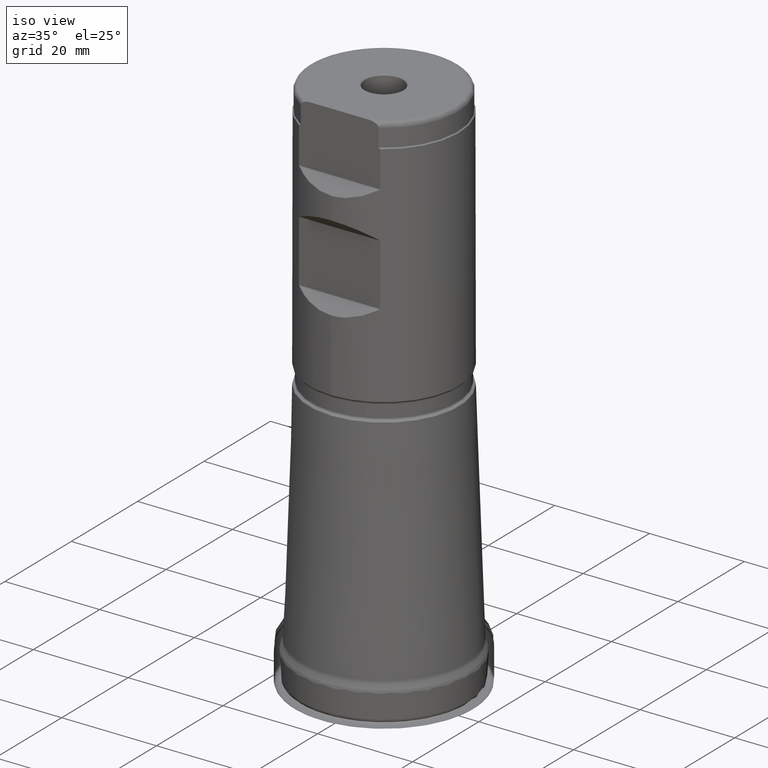
[diagram: clean part render]
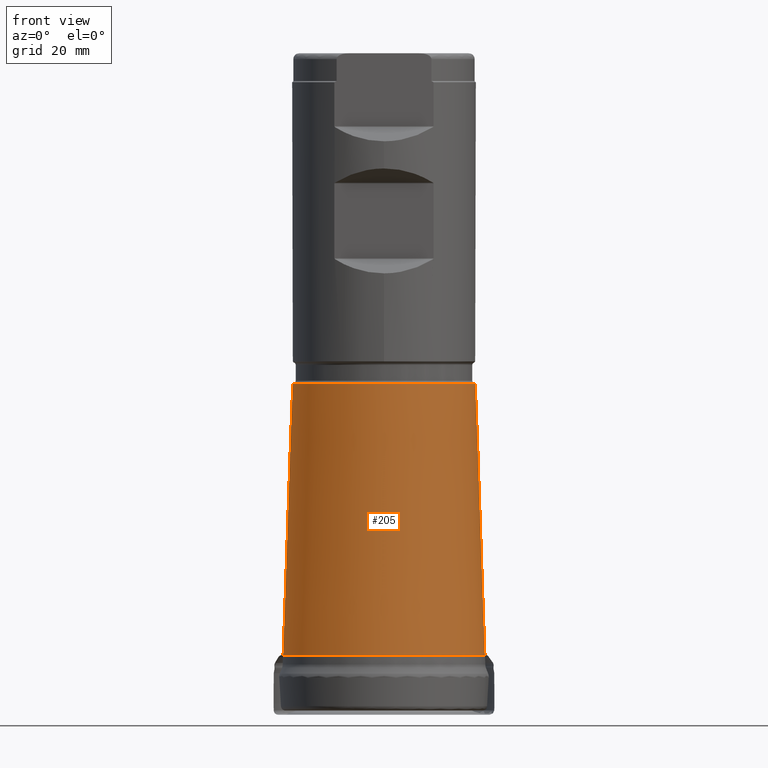
[diagram: tour spotlight — one face highlighted and labeled with its STEP entity id]
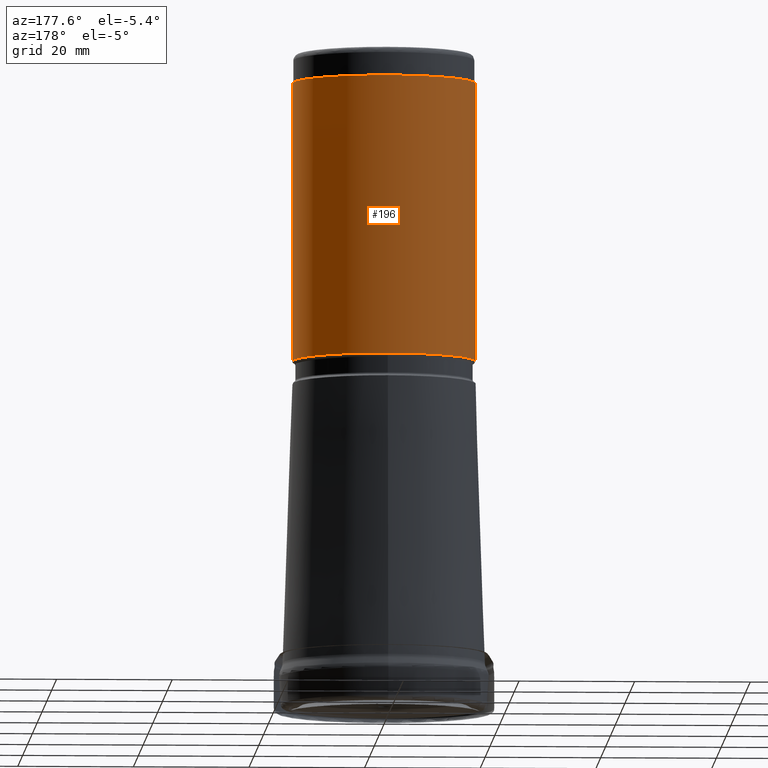
[diagram: tour spotlight — one face highlighted and labeled with its STEP entity id]
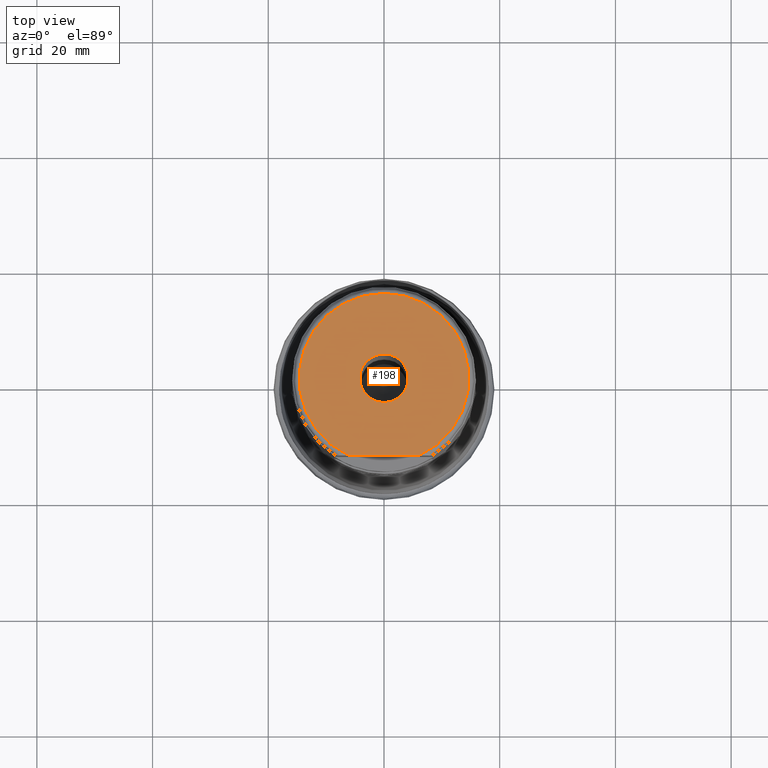
[diagram: tour spotlight — one face highlighted and labeled with its STEP entity id]
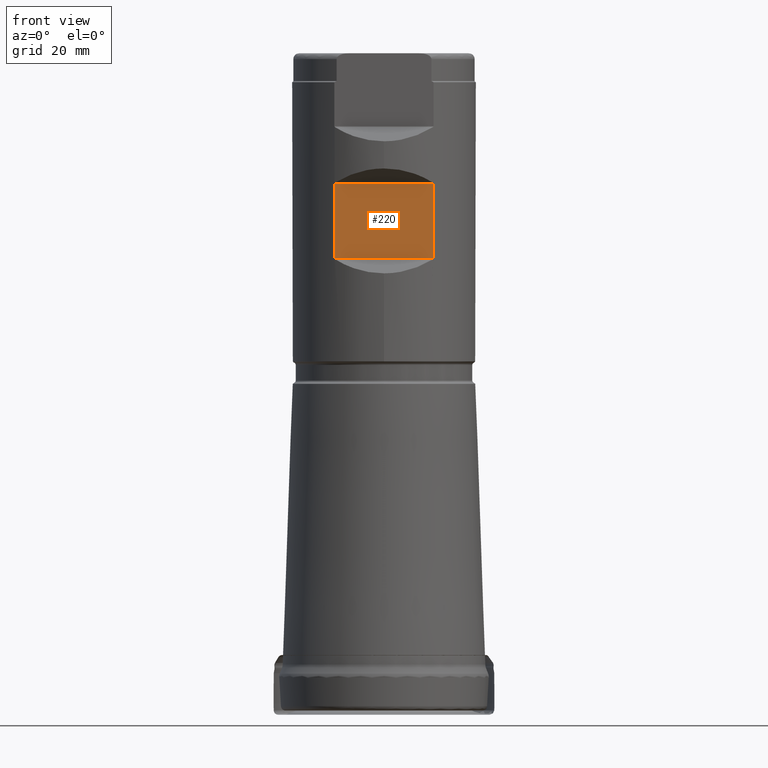
[diagram: tour spotlight — one face highlighted and labeled with its STEP entity id]
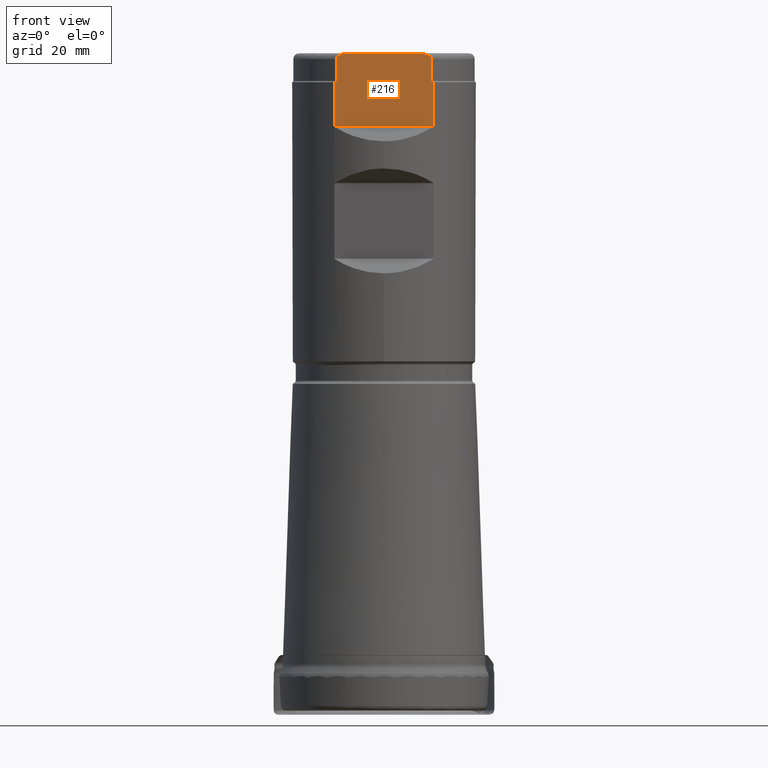
[diagram: tour spotlight — one face highlighted and labeled with its STEP entity id]
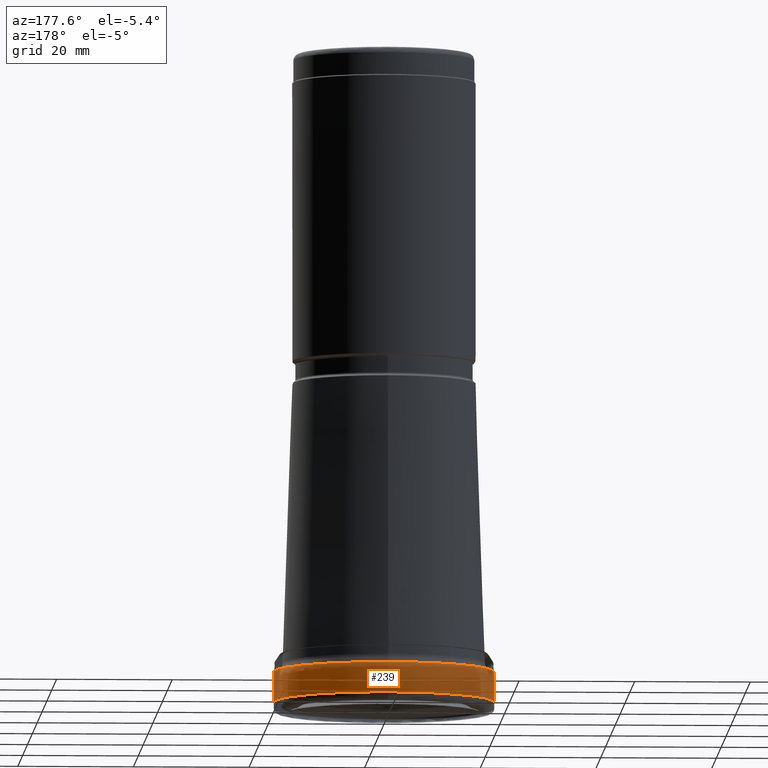
[diagram: tour spotlight — one face highlighted and labeled with its STEP entity id]
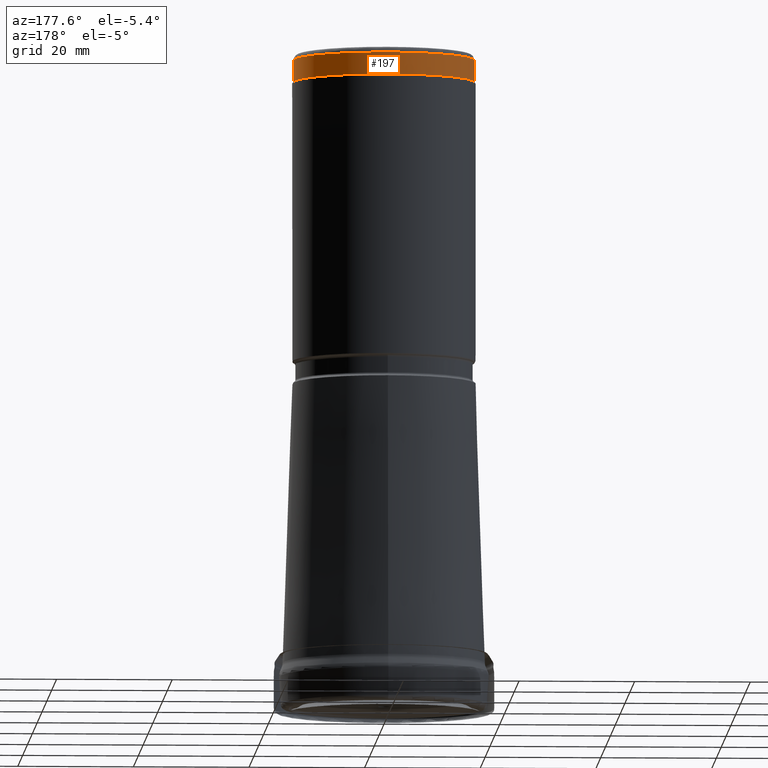
[diagram: tour spotlight — one face highlighted and labeled with its STEP entity id]
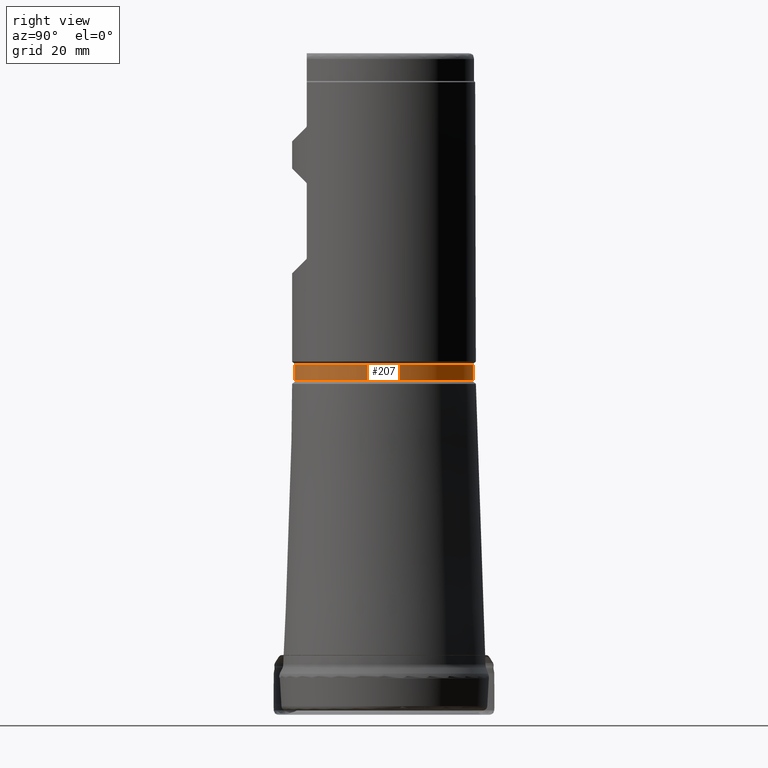
[diagram: tour spotlight — one face highlighted and labeled with its STEP entity id]
A machine part: a face-by-face anatomy tour. The part has 58 B-rep faces; the first image is the clean iso view, then the 8 largest visible faces are spotlighted one at a time (largest first), each with its STEP entity span.

Face 1 — front view, entity #205. In plain terms, the highlighted conical surface has half-angle 1.958 deg.
Definition (entity closure, byte-faithful):
#169=CONICAL_SURFACE('',#917,15.8818364508803,1.95773665841158);
#205=ADVANCED_FACE('',(#304,#305),#169,.T.);
#304=FACE_BOUND('',#402,.T.);
#305=FACE_BOUND('',#403,.T.);
#402=EDGE_LOOP('',(#528));
#403=EDGE_LOOP('',(#529));
#528=ORIENTED_EDGE('',*,*,#741,.T.);
#529=ORIENTED_EDGE('',*,*,#742,.F.);
#670=VERTEX_POINT('',#1583);
#671=VERTEX_POINT('',#1585);
#741=EDGE_CURVE('',#670,#670,#796,.T.);
#742=EDGE_CURVE('',#671,#671,#797,.T.);
#796=CIRCLE('',#915,17.5391526128432);
#797=CIRCLE('',#916,15.8818364508803);
#915=AXIS2_PLACEMENT_3D('',#1582,#1037,#1038);
#916=AXIS2_PLACEMENT_3D('',#1584,#1039,#1040);
#917=AXIS2_PLACEMENT_3D('',#1586,#1041,#1042);
#1037=DIRECTION('',(0.,1.17145536458252E-15,1.));
#1038=DIRECTION('',(0.,1.,-1.18686929586772E-15));
#1039=DIRECTION('',(0.,1.17145536458252E-15,1.));
#1040=DIRECTION('',(0.,-1.,1.31072258400998E-15));
#1041=DIRECTION('',(0.,-1.17145536458252E-15,-1.));
#1042=DIRECTION('',(0.,1.,-1.52460239751261E-15));
#1582=CARTESIAN_POINT('',(0.,1.01510186144051E-14,8.66530550058361));
#1583=CARTESIAN_POINT('',(0.,17.5391526128432,8.66530550058359));
#1584=CARTESIAN_POINT('',(0.,6.69486740858913E-14,57.15));
#1585=CARTESIAN_POINT('',(0.,-15.8818364508803,57.15));
#1586=CARTESIAN_POINT('',(0.,6.69486740858913E-14,57.15));

Face 2 — auxiliary view, entity #196. In plain terms, the highlighted cylindrical surface (bore or boss wall) has radius 15.875 mm, axis along (0, 0, 1).
Definition (entity closure, byte-faithful):
#196=ADVANCED_FACE('',(#291,#292,#293),#254,.T.);
#254=CYLINDRICAL_SURFACE('',#894,15.875);
#262=LINE('',#1450,#275);
#263=LINE('',#1482,#276);
#264=LINE('',#1498,#277);
#265=LINE('',#1502,#278);
#275=VECTOR('',#982,1.);
#276=VECTOR('',#985,1.);
#277=VECTOR('',#986,1.);
#278=VECTOR('',#989,1.);
#288=ELLIPSE('',#890,22.4506403026729,15.875);
#289=ELLIPSE('',#891,22.4506403026729,15.875);
#290=ELLIPSE('',#893,22.4506403026729,15.875);
#291=FACE_BOUND('',#386,.T.);
#292=FACE_BOUND('',#387,.T.);
#293=FACE_BOUND('',#388,.T.);
#386=EDGE_LOOP('',(#490));
#387=EDGE_LOOP('',(#491,#492,#493,#494,#495,#496,#497,#498));
#388=EDGE_LOOP('',(#499,#500,#501,#502,#503,#504));
#490=ORIENTED_EDGE('',*,*,#707,.T.);
#491=ORIENTED_EDGE('',*,*,#708,.F.);
#492=ORIENTED_EDGE('',*,*,#709,.T.);
#493=ORIENTED_EDGE('',*,*,#710,.F.);
#494=ORIENTED_EDGE('',*,*,#711,.T.);
#495=ORIENTED_EDGE('',*,*,#712,.F.);
#496=ORIENTED_EDGE('',*,*,#713,.T.);
#497=ORIENTED_EDGE('',*,*,#714,.F.);
#498=ORIENTED_EDGE('',*,*,#715,.T.);
#499=ORIENTED_EDGE('',*,*,#716,.F.);
#500=ORIENTED_EDGE('',*,*,#717,.T.);
#501=ORIENTED_EDGE('',*,*,#718,.F.);
#502=ORIENTED_EDGE('',*,*,#719,.T.);
#503=ORIENTED_EDGE('',*,*,#720,.F.);
#504=ORIENTED_EDGE('',*,*,#721,.T.);
#640=VERTEX_POINT('',#1418);
#641=VERTEX_POINT('',#1432);
#642=VERTEX_POINT('',#1433);
#643=VERTEX_POINT('',#1435);
#644=VERTEX_POINT('',#1449);
#645=VERTEX_POINT('',#1451);
#646=VERTEX_POINT('',#1465);
#647=VERTEX_POINT('',#1467);
#648=VERTEX_POINT('',#1481);
#649=VERTEX_POINT('',#1496);
#650=VERTEX_POINT('',#1497);
#651=VERTEX_POINT('',#1499);
#652=VERTEX_POINT('',#1501);
#653=VERTEX_POINT('',#1503);
#654=VERTEX_POINT('',#1517);
#707=EDGE_CURVE('',#640,#640,#782,.T.);
#708=EDGE_CURVE('',#641,#642,#855,.T.);
#709=EDGE_CURVE('',#641,#643,#288,.T.);
#710=EDGE_CURVE('',#644,#643,#856,.T.);
#711=EDGE_CURVE('',#644,#645,#262,.T.);
#712=EDGE_CURVE('',#646,#645,#857,.T.);
#713=EDGE_CURVE('',#646,#647,#289,.T.);
#714=EDGE_CURVE('',#648,#647,#858,.T.);
#715=EDGE_CURVE('',#648,#642,#263,.T.);
#716=EDGE_CURVE('',#649,#650,#859,.T.);
#717=EDGE_CURVE('',#649,#651,#264,.T.);
#718=EDGE_CURVE('',#652,#651,#783,.T.);
#719=EDGE_CURVE('',#652,#653,#265,.T.);
#720=EDGE_CURVE('',#654,#653,#860,.T.);
#721=EDGE_CURVE('',#654,#650,#290,.T.);
#782=CIRCLE('',#889,15.875);
#783=CIRCLE('',#892,15.875);
#855=B_SPLINE_CURVE_WITH_KNOTS('',3,(#1419,#1420,#1421,#1422,#1423,#1424,
#1425,#1426,#1427,#1428,#1429,#1430,#1431),.UNSPECIFIED.,.F.,.F.,(4,3,3,
3,4),(0.,0.447226272190569,0.702342778333381,0.915350888051915,1.),
 .UNSPECIFIED.);
#856=B_SPLINE_CURVE_WITH_KNOTS('',3,(#1436,#1437,#1438,#1439,#1440,#1441,
#1442,#1443,#1444,#1445,#1446,#1447,#1448),.UNSPECIFIED.,.F.,.F.,(4,3,3,
3,4),(0.,0.205640791358836,0.409516717561016,0.756966558360492,1.),
 .UNSPECIFIED.);
#857=B_SPLINE_CURVE_WITH_KNOTS('',3,(#1452,#1453,#1454,#1455,#1456,#1457,
#1458,#1459,#1460,#1461,#1462,#1463,#1464),.UNSPECIFIED.,.F.,.F.,(4,3,3,
3,4),(0.,0.447226272190579,0.702342778333387,0.915350888051914,1.),
 .UNSPECIFIED.);
#858=B_SPLINE_CURVE_WITH_KNOTS('',3,(#1468,#1469,#1470,#1471,#1472,#1473,
#1474,#1475,#1476,#1477,#1478,#1479,#1480),.UNSPECIFIED.,.F.,.F.,(4,3,3,
3,4),(0.,0.205640791358834,0.409516717561013,0.756966558360499,1.),
 .UNSPECIFIED.);
#859=B_SPLINE_CURVE_WITH_KNOTS('',3,(#1483,#1484,#1485,#1486,#1487,#1488,
#1489,#1490,#1491,#1492,#1493,#1494,#1495),.UNSPECIFIED.,.F.,.F.,(4,3,3,
3,4),(0.,0.205640791358836,0.409516717561016,0.756966558360505,1.),
 .UNSPECIFIED.);
#860=B_SPLINE_CURVE_WITH_KNOTS('',3,(#1504,#1505,#1506,#1507,#1508,#1509,
#1510,#1511,#1512,#1513,#1514,#1515,#1516),.UNSPECIFIED.,.F.,.F.,(4,3,3,
3,4),(0.,0.447226272190568,0.702342778333383,0.915350888051913,1.),
 .UNSPECIFIED.);
#889=AXIS2_PLACEMENT_3D('',#1417,#978,#979);
#890=AXIS2_PLACEMENT_3D('',#1434,#980,#981);
#891=AXIS2_PLACEMENT_3D('',#1466,#983,#984);
#892=AXIS2_PLACEMENT_3D('',#1500,#987,#988);
#893=AXIS2_PLACEMENT_3D('',#1518,#990,#991);
#894=AXIS2_PLACEMENT_3D('',#1519,#992,#993);
#978=DIRECTION('',(0.,1.17145536458252E-15,1.));
#979=DIRECTION('',(0.,-1.,1.31128703695885E-15));
#980=DIRECTION('',(4.32978028117746E-17,0.707106781186548,0.707106781186547));
#981=DIRECTION('',(-4.32978028117746E-17,-0.707106781186547,0.707106781186548));
#982=DIRECTION('',(0.,-1.17145536458252E-15,-1.));
#983=DIRECTION('',(-4.32978028117746E-17,0.707106781186546,-0.707106781186549));
#984=DIRECTION('',(-4.32978028117747E-17,0.707106781186549,0.707106781186546));
#985=DIRECTION('',(0.,1.17145536458252E-15,1.));
#986=DIRECTION('',(0.,1.17145536458252E-15,1.));
#987=DIRECTION('',(0.,1.17145536458252E-15,1.));
#988=DIRECTION('',(0.,-1.,8.74191357972565E-16));
#989=DIRECTION('',(0.,-1.17145536458252E-15,-1.));
#990=DIRECTION('',(-4.32978028117746E-17,0.707106781186547,-0.707106781186548));
#991=DIRECTION('',(-4.32978028117746E-17,0.707106781186548,0.707106781186547));
#992=DIRECTION('',(0.,1.17145536458252E-15,1.));
#993=DIRECTION('',(0.,-1.,1.17145536458252E-15));
#1417=CARTESIAN_POINT('',(0.,7.15075191289347E-14,61.04160797831));
#1418=CARTESIAN_POINT('',(0.,-15.8749999999999,61.04160797831));
#1419=CARTESIAN_POINT('',(-8.43243242797532,-13.4502679656439,91.9691929656441));
#1420=CARTESIAN_POINT('',(-8.46361143884219,-13.4307207787048,91.9496457787049));
#1421=CARTESIAN_POINT('',(-8.4933984424716,-13.4118846570127,91.9255206495938));
#1422=CARTESIAN_POINT('',(-8.5178872560294,-13.396313735262,91.8956181386713));
#1423=CARTESIAN_POINT('',(-8.53193173130368,-13.3873837221763,91.8784688768544));
#1424=CARTESIAN_POINT('',(-8.54441382984934,-13.3794147287313,91.8590630275321));
#1425=CARTESIAN_POINT('',(-8.55368735168281,-13.3734833790475,91.8378519341128));
#1426=CARTESIAN_POINT('',(-8.56142480473667,-13.368534499803,91.8201542522073));
#1427=CARTESIAN_POINT('',(-8.56702492155711,-13.3649436058532,91.8007778754662));
#1428=CARTESIAN_POINT('',(-8.56949269450963,-13.3633611026097,91.78105546916));
#1429=CARTESIAN_POINT('',(-8.57048531444897,-13.3627245674407,91.7731224647353));
#1430=CARTESIAN_POINT('',(-8.57099126355872,-13.3623999999999,91.7650810952869));
#1431=CARTESIAN_POINT('',(-8.57099126355872,-13.3623999999999,91.7570609312881));
#1432=CARTESIAN_POINT('',(-8.43243242797532,-13.4502679656439,91.9691929656441));
#1433=CARTESIAN_POINT('',(-8.57099126355872,-13.3623999999999,91.7570609312881));
#1434=CARTESIAN_POINT('',(0.,9.19814159125029E-14,78.518925));
#1435=CARTESIAN_POINT('',(8.43243242797532,-13.4502679656439,91.9691929656441));
#1436=CARTESIAN_POINT('',(8.57099126355872,-13.3623999999999,91.7570609312881));
#1437=CARTESIAN_POINT('',(8.57099126355872,-13.3623999999999,91.7762786100295));
#1438=CARTESIAN_POINT('',(8.56797949318684,-13.3643329132384,91.7957349967495));
#1439=CARTESIAN_POINT('',(8.56253452978559,-13.3678205937328,91.8138321687532));
#1440=CARTESIAN_POINT('',(8.55711630655783,-13.371291146255,91.8318404656841));
#1441=CARTESIAN_POINT('',(8.54924203747681,-13.3763301718208,91.8489420979583));
#1442=CARTESIAN_POINT('',(8.53988226968962,-13.3823030835442,91.8645119312464));
#1443=CARTESIAN_POINT('',(8.52402617126588,-13.3924216119433,91.8908883130832));
#1444=CARTESIAN_POINT('',(8.50361010911265,-13.4054063416646,91.9136449033583));
#1445=CARTESIAN_POINT('',(8.48158209832743,-13.4193289738842,91.9328917484479));
#1446=CARTESIAN_POINT('',(8.46605900530033,-13.429140223626,91.946454959839));
#1447=CARTESIAN_POINT('',(8.44951467811195,-13.4395585195301,91.9584835195302));
#1448=CARTESIAN_POINT('',(8.43243242797532,-13.4502679656439,91.9691929656441));
#1449=CARTESIAN_POINT('',(8.57099126355872,-13.3623999999999,91.7570609312881));
#1450=CARTESIAN_POINT('',(8.57099126355872,-13.3624,1.56534551636975E-14));
#1451=CARTESIAN_POINT('',(8.57099126355872,-13.3623999999999,78.8991890687119));
#1452=CARTESIAN_POINT('',(8.43243242797532,-13.4502679656439,78.687057034356));
#1453=CARTESIAN_POINT('',(8.46361143884219,-13.4307207787048,78.7066042212951));
#1454=CARTESIAN_POINT('',(8.4933984424716,-13.4118846570127,78.7307293504063));
#1455=CARTESIAN_POINT('',(8.51788725602941,-13.396313735262,78.7606318613287));
#1456=CARTESIAN_POINT('',(8.53193173130368,-13.3873837221763,78.7777811231457));
#1457=CARTESIAN_POINT('',(8.54441382984935,-13.3794147287313,78.797186972468));
#1458=CARTESIAN_POINT('',(8.55368735168281,-13.3734833790475,78.8183980658872));
#1459=CARTESIAN_POINT('',(8.56142480473667,-13.368534499803,78.8360957477927));
#1460=CARTESIAN_POINT('',(8.5670249215571,-13.3649436058532,78.8554721245339));
#1461=CARTESIAN_POINT('',(8.56949269450962,-13.3633611026098,78.87519453084));
#1462=CARTESIAN_POINT('',(8.57048531444897,-13.3627245674407,78.8831275352647));
#1463=CARTESIAN_POINT('',(8.57099126355872,-13.3623999999999,78.8911689047132));
#1464=CARTESIAN_POINT('',(8.57099126355872,-13.3623999999999,78.8991890687119));
#1465=CARTESIAN_POINT('',(8.43243242797532,-13.4502679656439,78.687057034356));
#1466=CARTESIAN_POINT('',(0.,1.07934763649533E-13,92.137325));
#1467=CARTESIAN_POINT('',(-8.43243242797532,-13.4502679656439,78.687057034356));
#1468=CARTESIAN_POINT('',(-8.57099126355872,-13.3623999999999,78.8991890687119));
#1469=CARTESIAN_POINT('',(-8.57099126355872,-13.3623999999999,78.8799713899706));
#1470=CARTESIAN_POINT('',(-8.56797949318684,-13.3643329132385,78.8605150032506));
#1471=CARTESIAN_POINT('',(-8.5625345297856,-13.3678205937328,78.8424178312468));
#1472=CARTESIAN_POINT('',(-8.55711630655783,-13.371291146255,78.8244095343159));
#1473=CARTESIAN_POINT('',(-8.54924203747681,-13.3763301718208,78.8073079020418));
#1474=CARTESIAN_POINT('',(-8.53988226968962,-13.3823030835443,78.7917380687536));
#1475=CARTESIAN_POINT('',(-8.52402617126588,-13.3924216119433,78.7653616869169));
#1476=CARTESIAN_POINT('',(-8.50361010911265,-13.4054063416646,78.7426050966418));
#1477=CARTESIAN_POINT('',(-8.48158209832743,-13.4193289738842,78.7233582515522));
#1478=CARTESIAN_POINT('',(-8.46605900530033,-13.429140223626,78.7097950401611));
#1479=CARTESIAN_POINT('',(-8.44951467811195,-13.4395585195301,78.6977664804698));
#1480=CARTESIAN_POINT('',(-8.43243242797532,-13.4502679656439,78.687057034356));
#1481=CARTESIAN_POINT('',(-8.57099126355872,-13.3623999999999,78.8991890687119));
#1482=CARTESIAN_POINT('',(-8.57099126355872,-13.3624,1.56534551636975E-14));
#1483=CARTESIAN_POINT('',(-8.57099126355872,-13.3623999999999,101.724264068712));
#1484=CARTESIAN_POINT('',(-8.57099126355872,-13.3623999999999,101.705046389971));
#1485=CARTESIAN_POINT('',(-8.56797949318684,-13.3643329132384,101.685590003251));
#1486=CARTESIAN_POINT('',(-8.5625345297856,-13.3678205937328,101.667492831247));
#1487=CARTESIAN_POINT('',(-8.55711630655783,-13.371291146255,101.649484534316));
#1488=CARTESIAN_POINT('',(-8.54924203747681,-13.3763301718208,101.632382902042));
#1489=CARTESIAN_POINT('',(-8.53988226968962,-13.3823030835442,101.616813068754));
#1490=CARTESIAN_POINT('',(-8.52402617126588,-13.3924216119433,101.590436686917));
#1491=CARTESIAN_POINT('',(-8.50361010911265,-13.4054063416646,101.567680096642));
#1492=CARTESIAN_POINT('',(-8.48158209832743,-13.4193289738842,101.548433251552));
#1493=CARTESIAN_POINT('',(-8.46605900530033,-13.4291402236259,101.534870040161));
#1494=CARTESIAN_POINT('',(-8.44951467811195,-13.4395585195301,101.52284148047));
#1495=CARTESIAN_POINT('',(-8.43243242797531,-13.4502679656439,101.512132034356));
#1496=CARTESIAN_POINT('',(-8.57099126355872,-13.3623999999999,101.724264068712));
#1497=CARTESIAN_POINT('',(-8.43243242797531,-13.4502679656439,101.512132034356));
#1498=CARTESIAN_POINT('',(-8.57099126355872,-13.3624,1.56534551636975E-14));
#1499=CARTESIAN_POINT('',(-8.57099126355872,-13.3623999999999,109.3));
#1500=CARTESIAN_POINT('',(0.,1.2804007134887E-13,109.3));
#1501=CARTESIAN_POINT('',(8.57099126355872,-13.3623999999999,109.3));
#1502=CARTESIAN_POINT('',(8.57099126355872,-13.3624,1.56534551636975E-14));
#1503=CARTESIAN_POINT('',(8.57099126355872,-13.3623999999999,101.724264068712));
#1504=CARTESIAN_POINT('',(8.43243242797531,-13.4502679656439,101.512132034356));
#1505=CARTESIAN_POINT('',(8.46361143884218,-13.4307207787048,101.531679221295));
#1506=CARTESIAN_POINT('',(8.4933984424716,-13.4118846570126,101.555804350406));
#1507=CARTESIAN_POINT('',(8.51788725602941,-13.396313735262,101.585706861329));
#1508=CARTESIAN_POINT('',(8.53193173130368,-13.3873837221762,101.602856123146));
#1509=CARTESIAN_POINT('',(8.54441382984935,-13.3794147287313,101.622261972468));
#1510=CARTESIAN_POINT('',(8.55368735168281,-13.3734833790474,101.643473065887));
#1511=CARTESIAN_POINT('',(8.56142480473667,-13.368534499803,101.661170747793));
#1512=CARTESIAN_POINT('',(8.56702492155711,-13.3649436058532,101.680547124534));
#1513=CARTESIAN_POINT('',(8.56949269450962,-13.3633611026097,101.70026953084));
#1514=CARTESIAN_POINT('',(8.57048531444897,-13.3627245674407,101.708202535265));
#1515=CARTESIAN_POINT('',(8.57099126355872,-13.3623999999999,101.716243904713));
#1516=CARTESIAN_POINT('',(8.57099126355872,-13.3623999999999,101.724264068712));
#1517=CARTESIAN_POINT('',(8.43243242797531,-13.4502679656439,101.512132034356));
#1518=CARTESIAN_POINT('',(0.,1.34673320205282E-13,114.9624));
#1519=CARTESIAN_POINT('',(0.,0.,0.));

Face 3 — top view, entity #198. In plain terms, the highlighted planar face has unit normal (0, 0, 1).
Definition (entity closure, byte-faithful):
#177=PLANE('',#900);
#198=ADVANCED_FACE('',(#294,#295),#177,.T.);
#268=LINE('',#1534,#281);
#281=VECTOR('',#1006,1.);
#294=FACE_BOUND('',#390,.T.);
#295=FACE_BOUND('',#391,.T.);
#390=EDGE_LOOP('',(#509));
#391=EDGE_LOOP('',(#510,#511));
#509=ORIENTED_EDGE('',*,*,#726,.T.);
#510=ORIENTED_EDGE('',*,*,#727,.T.);
#511=ORIENTED_EDGE('',*,*,#728,.T.);
#659=VERTEX_POINT('',#1530);
#660=VERTEX_POINT('',#1532);
#661=VERTEX_POINT('',#1533);
#726=EDGE_CURVE('',#659,#659,#786,.T.);
#727=EDGE_CURVE('',#660,#661,#787,.T.);
#728=EDGE_CURVE('',#661,#660,#268,.T.);
#786=CIRCLE('',#898,4.2);
#787=CIRCLE('',#899,14.675);
#898=AXIS2_PLACEMENT_3D('',#1529,#1002,#1003);
#899=AXIS2_PLACEMENT_3D('',#1531,#1004,#1005);
#900=AXIS2_PLACEMENT_3D('',#1535,#1007,#1008);
#1002=DIRECTION('',(0.,-1.17145536458252E-15,-1.));
#1003=DIRECTION('',(0.,-1.,0.));
#1004=DIRECTION('',(0.,1.17145536458252E-15,1.));
#1005=DIRECTION('',(0.,-1.,9.45675489459248E-16));
#1006=DIRECTION('',(1.,-7.17309531289991E-32,-6.12323399573676E-17));
#1007=DIRECTION('',(0.,1.17145536458252E-15,1.));
#1008=DIRECTION('',(0.,-1.,1.16573417585641E-15));
#1529=CARTESIAN_POINT('',(0.,1.33897348171783E-13,114.3));
#1530=CARTESIAN_POINT('',(0.,-4.19999999999987,114.3));
#1531=CARTESIAN_POINT('',(0.,1.33897348171783E-13,114.3));
#1532=CARTESIAN_POINT('',(6.06645623407932,-13.3623999999999,114.3));
#1533=CARTESIAN_POINT('',(-6.06645623407933,-13.3623999999999,114.3));
#1534=CARTESIAN_POINT('',(-17.5,-13.3623999999999,114.3));
#1535=CARTESIAN_POINT('',(0.,1.33897348171783E-13,114.3));

Face 4 — front view, entity #220. In plain terms, the highlighted planar face has unit normal (0, -1, 0).
Definition (entity closure, byte-faithful):
#183=PLANE('',#938);
#192=FACE_OUTER_BOUND('',#427,.T.);
#220=ADVANCED_FACE('',(#192),#183,.T.);
#262=LINE('',#1450,#275);
#263=LINE('',#1482,#276);
#272=LINE('',#1617,#285);
#273=LINE('',#1618,#286);
#275=VECTOR('',#982,1.);
#276=VECTOR('',#985,1.);
#285=VECTOR('',#1086,1.);
#286=VECTOR('',#1087,1.);
#427=EDGE_LOOP('',(#567,#568,#569,#570));
#567=ORIENTED_EDGE('',*,*,#752,.T.);
#568=ORIENTED_EDGE('',*,*,#715,.F.);
#569=ORIENTED_EDGE('',*,*,#753,.T.);
#570=ORIENTED_EDGE('',*,*,#711,.F.);
#642=VERTEX_POINT('',#1433);
#644=VERTEX_POINT('',#1449);
#645=VERTEX_POINT('',#1451);
#648=VERTEX_POINT('',#1481);
#711=EDGE_CURVE('',#644,#645,#262,.T.);
#715=EDGE_CURVE('',#648,#642,#263,.T.);
#752=EDGE_CURVE('',#644,#642,#272,.T.);
#753=EDGE_CURVE('',#648,#645,#273,.T.);
#938=AXIS2_PLACEMENT_3D('',#1619,#1088,#1089);
#982=DIRECTION('',(0.,-1.17145536458252E-15,-1.));
#985=DIRECTION('',(0.,1.17145536458252E-15,1.));
#1086=DIRECTION('',(-1.,7.17309531289991E-32,6.12323399573676E-17));
#1087=DIRECTION('',(1.,-7.17309531289991E-32,-6.12323399573676E-17));
#1088=DIRECTION('',(2.05927208001509E-49,-1.,1.17145536458252E-15));
#1089=DIRECTION('',(6.24500451351651E-17,1.17093834628434E-15,1.));
#1433=CARTESIAN_POINT('',(-8.57099126355872,-13.3623999999999,91.7570609312881));
#1449=CARTESIAN_POINT('',(8.57099126355872,-13.3623999999999,91.7570609312881));
#1450=CARTESIAN_POINT('',(8.57099126355872,-13.3624,1.56534551636975E-14));
#1451=CARTESIAN_POINT('',(8.57099126355872,-13.3623999999999,78.8991890687119));
#1481=CARTESIAN_POINT('',(-8.57099126355872,-13.3623999999999,78.8991890687119));
#1482=CARTESIAN_POINT('',(-8.57099126355872,-13.3624,1.56534551636975E-14));
#1617=CARTESIAN_POINT('',(-17.5,-13.3623999999999,91.7570609312881));
#1618=CARTESIAN_POINT('',(-17.5,-13.3623999999999,78.8991890687119));
#1619=CARTESIAN_POINT('',(-17.5,-13.3623999999999,91.881325));

Face 5 — front view, entity #216. In plain terms, the highlighted planar face has unit normal (0, -1, 0).
Definition (entity closure, byte-faithful):
#180=PLANE('',#934);
#188=FACE_OUTER_BOUND('',#423,.T.);
#216=ADVANCED_FACE('',(#188),#180,.T.);
#264=LINE('',#1498,#277);
#265=LINE('',#1502,#278);
#266=LINE('',#1523,#279);
#267=LINE('',#1527,#280);
#268=LINE('',#1534,#281);
#269=LINE('',#1610,#282);
#277=VECTOR('',#986,1.);
#278=VECTOR('',#989,1.);
#279=VECTOR('',#996,1.);
#280=VECTOR('',#999,1.);
#281=VECTOR('',#1006,1.);
#282=VECTOR('',#1075,1.);
#423=EDGE_LOOP('',(#549,#550,#551,#552,#553,#554,#555,#556,#557,#558));
#549=ORIENTED_EDGE('',*,*,#749,.T.);
#550=ORIENTED_EDGE('',*,*,#719,.F.);
#551=ORIENTED_EDGE('',*,*,#729,.T.);
#552=ORIENTED_EDGE('',*,*,#723,.F.);
#553=ORIENTED_EDGE('',*,*,#732,.F.);
#554=ORIENTED_EDGE('',*,*,#728,.F.);
#555=ORIENTED_EDGE('',*,*,#731,.F.);
#556=ORIENTED_EDGE('',*,*,#725,.F.);
#557=ORIENTED_EDGE('',*,*,#730,.T.);
#558=ORIENTED_EDGE('',*,*,#717,.F.);
#649=VERTEX_POINT('',#1496);
#651=VERTEX_POINT('',#1499);
#652=VERTEX_POINT('',#1501);
#653=VERTEX_POINT('',#1503);
#655=VERTEX_POINT('',#1521);
#656=VERTEX_POINT('',#1522);
#657=VERTEX_POINT('',#1524);
#658=VERTEX_POINT('',#1526);
#660=VERTEX_POINT('',#1532);
#661=VERTEX_POINT('',#1533);
#717=EDGE_CURVE('',#649,#651,#264,.T.);
#719=EDGE_CURVE('',#652,#653,#265,.T.);
#723=EDGE_CURVE('',#656,#657,#266,.T.);
#725=EDGE_CURVE('',#658,#655,#267,.T.);
#728=EDGE_CURVE('',#661,#660,#268,.T.);
#729=EDGE_CURVE('',#652,#657,#861,.T.);
#730=EDGE_CURVE('',#658,#651,#862,.T.);
#731=EDGE_CURVE('',#655,#661,#863,.T.);
#732=EDGE_CURVE('',#660,#656,#864,.T.);
#749=EDGE_CURVE('',#649,#653,#269,.T.);
#861=B_SPLINE_CURVE_WITH_KNOTS('',3,(#1536,#1537,#1538,#1539),
 .UNSPECIFIED.,.F.,.F.,(4,4),(0.,1.),.UNSPECIFIED.);
#862=B_SPLINE_CURVE_WITH_KNOTS('',3,(#1540,#1541,#1542,#1543),
 .UNSPECIFIED.,.F.,.F.,(4,4),(0.,1.),.UNSPECIFIED.);
#863=B_SPLINE_CURVE_WITH_KNOTS('',3,(#1545,#1546,#1547,#1548,#1549,#1550,
#1551,#1552),.UNSPECIFIED.,.F.,.F.,(4,2,2,4),(0.,0.249999999999998,0.499999999999997,
1.),.UNSPECIFIED.);
#864=B_SPLINE_CURVE_WITH_KNOTS('',3,(#1553,#1554,#1555,#1556,#1557,#1558,
#1559,#1560),.UNSPECIFIED.,.F.,.F.,(4,2,2,4),(0.,0.5,0.749999999999999,
1.),.UNSPECIFIED.);
#934=AXIS2_PLACEMENT_3D('',#1611,#1076,#1077);
#986=DIRECTION('',(0.,1.17145536458252E-15,1.));
#989=DIRECTION('',(0.,-1.17145536458252E-15,-1.));
#996=DIRECTION('',(0.,-1.17145536458252E-15,-1.));
#999=DIRECTION('',(0.,1.17145536458252E-15,1.));
#1006=DIRECTION('',(1.,-7.17309531289991E-32,-6.12323399573676E-17));
#1075=DIRECTION('',(1.,-7.17309531289991E-32,-6.12323399573676E-17));
#1076=DIRECTION('',(2.05927208001509E-49,-1.,1.17145536458252E-15));
#1077=DIRECTION('',(6.24500451351651E-17,1.17093834628434E-15,1.));
#1496=CARTESIAN_POINT('',(-8.57099126355872,-13.3623999999999,101.724264068712));
#1498=CARTESIAN_POINT('',(-8.57099126355872,-13.3624,1.56534551636975E-14));
#1499=CARTESIAN_POINT('',(-8.57099126355872,-13.3623999999999,109.3));
#1501=CARTESIAN_POINT('',(8.57099126355872,-13.3623999999999,109.3));
#1502=CARTESIAN_POINT('',(8.57099126355872,-13.3624,1.56534551636975E-14));
#1503=CARTESIAN_POINT('',(8.57099126355872,-13.3623999999999,101.724264068712));
#1521=CARTESIAN_POINT('',(-8.19462575350837,-13.3623999999999,113.299999999998));
#1522=CARTESIAN_POINT('',(8.19462575350455,-13.3623999999999,113.3));
#1523=CARTESIAN_POINT('',(8.19462575350454,-13.3624,1.56534551636975E-14));
#1524=CARTESIAN_POINT('',(8.19462575350454,-13.3623999999999,109.5));
#1526=CARTESIAN_POINT('',(-8.19462575350454,-13.3623999999999,109.5));
#1527=CARTESIAN_POINT('',(-8.19462575350454,-13.3624,1.56534551636975E-14));
#1532=CARTESIAN_POINT('',(6.06645623407932,-13.3623999999999,114.3));
#1533=CARTESIAN_POINT('',(-6.06645623407933,-13.3623999999999,114.3));
#1534=CARTESIAN_POINT('',(-17.5,-13.3623999999999,114.3));
#1536=CARTESIAN_POINT('',(8.57099126355871,-13.3623999999999,109.3));
#1537=CARTESIAN_POINT('',(8.44594207219432,-13.3623999999999,109.367514678847));
#1538=CARTESIAN_POINT('',(8.32049477771702,-13.3623999999999,109.43419779602));
#1539=CARTESIAN_POINT('',(8.19462575350454,-13.3623999999999,109.5));
#1540=CARTESIAN_POINT('',(-8.19462575350455,-13.3623999999999,109.5));
#1541=CARTESIAN_POINT('',(-8.320560552785,-13.3623999999999,109.434163409924));
#1542=CARTESIAN_POINT('',(-8.44600610902368,-13.3623999999999,109.367480105045));
#1543=CARTESIAN_POINT('',(-8.57099126355872,-13.3623999999999,109.3));
#1545=CARTESIAN_POINT('',(-8.19462575350498,-13.3623999999999,113.299999999998));
#1546=CARTESIAN_POINT('',(-8.19462575350591,-13.3623999999999,113.514245619215));
#1547=CARTESIAN_POINT('',(-8.05473348501011,-13.3623999999999,113.707466748487));
#1548=CARTESIAN_POINT('',(-7.7207477793319,-13.3623999999999,113.972202420889));
#1549=CARTESIAN_POINT('',(-7.52348184982914,-13.3623999999999,114.061466380317));
#1550=CARTESIAN_POINT('',(-6.9159118190965,-13.3623999999999,114.259548555666));
#1551=CARTESIAN_POINT('',(-6.49141414065777,-13.3623999999999,114.3));
#1552=CARTESIAN_POINT('',(-6.06645623407932,-13.3623999999999,114.3));
#1553=CARTESIAN_POINT('',(6.06645623407932,-13.3623999999999,114.3));
#1554=CARTESIAN_POINT('',(6.49141351093796,-13.3623999999999,114.3));
#1555=CARTESIAN_POINT('',(6.91984567689066,-13.3623999999999,114.258558274765));
#1556=CARTESIAN_POINT('',(7.52398136149152,-13.3623999999999,114.061156506566));
#1557=CARTESIAN_POINT('',(7.72119427798035,-13.3623999999999,113.971914539636));
#1558=CARTESIAN_POINT('',(8.05474827818989,-13.3623999999999,113.707388892768));
#1559=CARTESIAN_POINT('',(8.19462575350454,-13.3623999999999,113.512817489331));
#1560=CARTESIAN_POINT('',(8.19462575350454,-13.3623999999999,113.3));
#1610=CARTESIAN_POINT('',(-17.5,-13.3623999999999,101.724264068712));
#1611=CARTESIAN_POINT('',(-17.5,-13.3623999999999,114.3));

Face 6 — auxiliary view, entity #239. In plain terms, the highlighted face is a SurfaceOfRevolution surface.
Definition (entity closure, byte-faithful):
#116=SURFACE_OF_REVOLUTION('',#873,#139);
#139=AXIS1_PLACEMENT('',#1758,#1147);
#239=ADVANCED_FACE('',(#356,#357),#116,.F.);
#356=FACE_BOUND('',#460,.T.);
#357=FACE_BOUND('',#461,.T.);
#460=EDGE_LOOP('',(#610));
#461=EDGE_LOOP('',(#611));
#610=ORIENTED_EDGE('',*,*,#767,.T.);
#611=ORIENTED_EDGE('',*,*,#768,.F.);
#692=VERTEX_POINT('',#1742);
#693=VERTEX_POINT('',#1751);
#767=EDGE_CURVE('',#692,#692,#816,.T.);
#768=EDGE_CURVE('',#693,#693,#817,.T.);
#816=CIRCLE('',#961,19.0820132478965);
#817=CIRCLE('',#962,19.0586699020652);
#873=B_SPLINE_CURVE_WITH_KNOTS('',5,(#1752,#1753,#1754,#1755,#1756,#1757),
 .UNSPECIFIED.,.F.,.F.,(6,6),(0.,1.),.UNSPECIFIED.);
#961=AXIS2_PLACEMENT_3D('',#1741,#1142,#1143);
#962=AXIS2_PLACEMENT_3D('',#1750,#1145,#1146);
#1142=DIRECTION('',(0.,0.,-1.));
#1143=DIRECTION('',(-1.,0.,0.));
#1145=DIRECTION('',(0.,0.,-1.));
#1146=DIRECTION('',(-1.,0.,0.));
#1147=DIRECTION('',(0.,0.,-1.));
#1741=CARTESIAN_POINT('',(0.,0.,1.90663757386945));
#1742=CARTESIAN_POINT('',(-19.0820132478965,0.,1.90663757386945));
#1750=CARTESIAN_POINT('',(0.,0.,7.14467375598112));
#1751=CARTESIAN_POINT('',(-19.0586699020652,0.,7.14467375598112));
#1752=CARTESIAN_POINT('',(19.0586698466601,0.,7.14467375483811));
#1753=CARTESIAN_POINT('',(19.0813569762736,-3.88547118397501E-32,6.09725094619558));
#1754=CARTESIAN_POINT('',(19.0949780669476,-1.23409724322193E-30,5.04963158879435));
#1755=CARTESIAN_POINT('',(19.0995976161211,-6.07153216591882E-15,4.0019217343375));
#1756=CARTESIAN_POINT('',(19.0952656402095,-6.07153216591883E-15,2.9542232211347));
#1757=CARTESIAN_POINT('',(19.0820132478965,-6.07153216591882E-15,1.90663757386945));
#1758=CARTESIAN_POINT('',(0.,0.,0.));

Face 7 — auxiliary view, entity #197. In plain terms, the highlighted cylindrical surface (partial cylindrical patch) has radius 15.675 mm, axis along (0, 0, 1).
Definition (entity closure, byte-faithful):
#185=FACE_OUTER_BOUND('',#389,.T.);
#197=ADVANCED_FACE('',(#185),#255,.T.);
#255=CYLINDRICAL_SURFACE('',#897,15.675);
#266=LINE('',#1523,#279);
#267=LINE('',#1527,#280);
#279=VECTOR('',#996,1.);
#280=VECTOR('',#999,1.);
#389=EDGE_LOOP('',(#505,#506,#507,#508));
#505=ORIENTED_EDGE('',*,*,#722,.T.);
#506=ORIENTED_EDGE('',*,*,#723,.T.);
#507=ORIENTED_EDGE('',*,*,#724,.T.);
#508=ORIENTED_EDGE('',*,*,#725,.T.);
#655=VERTEX_POINT('',#1521);
#656=VERTEX_POINT('',#1522);
#657=VERTEX_POINT('',#1524);
#658=VERTEX_POINT('',#1526);
#722=EDGE_CURVE('',#655,#656,#784,.T.);
#723=EDGE_CURVE('',#656,#657,#266,.T.);
#724=EDGE_CURVE('',#657,#658,#785,.T.);
#725=EDGE_CURVE('',#658,#655,#267,.T.);
#784=CIRCLE('',#895,15.675);
#785=CIRCLE('',#896,15.675);
#895=AXIS2_PLACEMENT_3D('',#1520,#994,#995);
#896=AXIS2_PLACEMENT_3D('',#1525,#997,#998);
#897=AXIS2_PLACEMENT_3D('',#1528,#1000,#1001);
#994=DIRECTION('',(0.,-1.17145536458252E-15,-1.));
#995=DIRECTION('',(0.,-1.,8.85345314693108E-16));
#996=DIRECTION('',(0.,-1.17145536458252E-15,-1.));
#997=DIRECTION('',(0.,1.17145536458252E-15,1.));
#998=DIRECTION('',(0.,-1.,8.85345314693108E-16));
#999=DIRECTION('',(0.,1.17145536458252E-15,1.));
#1000=DIRECTION('',(0.,1.17145536458252E-15,1.));
#1001=DIRECTION('',(0.,-1.,1.17145536458252E-15));
#1520=CARTESIAN_POINT('',(0.,1.327258928072E-13,113.3));
#1521=CARTESIAN_POINT('',(-8.19462575350837,-13.3623999999999,113.299999999998));
#1522=CARTESIAN_POINT('',(8.19462575350455,-13.3623999999999,113.3));
#1523=CARTESIAN_POINT('',(8.19462575350454,-13.3624,1.56534551636975E-14));
#1524=CARTESIAN_POINT('',(8.19462575350454,-13.3623999999999,109.5));
#1525=CARTESIAN_POINT('',(0.,1.28274362421786E-13,109.5));
#1526=CARTESIAN_POINT('',(-8.19462575350454,-13.3623999999999,109.5));
#1527=CARTESIAN_POINT('',(-8.19462575350454,-13.3624,1.56534551636975E-14));
#1528=CARTESIAN_POINT('',(0.,0.,0.));

Face 8 — right view, entity #207. In plain terms, the highlighted cylindrical surface (bore or boss wall) has radius 15.375 mm, axis along (0, 0, 1).
Definition (entity closure, byte-faithful):
#207=ADVANCED_FACE('',(#308,#309),#256,.T.);
#256=CYLINDRICAL_SURFACE('',#922,15.375);
#308=FACE_BOUND('',#406,.T.);
#309=FACE_BOUND('',#407,.T.);
#406=EDGE_LOOP('',(#532));
#407=EDGE_LOOP('',(#533));
#532=ORIENTED_EDGE('',*,*,#744,.T.);
#533=ORIENTED_EDGE('',*,*,#745,.T.);
#673=VERTEX_POINT('',#1591);
#674=VERTEX_POINT('',#1593);
#744=EDGE_CURVE('',#673,#673,#799,.T.);
#745=EDGE_CURVE('',#674,#674,#800,.T.);
#799=CIRCLE('',#920,15.375);
#800=CIRCLE('',#921,15.375);
#920=AXIS2_PLACEMENT_3D('',#1590,#1047,#1048);
#921=AXIS2_PLACEMENT_3D('',#1592,#1049,#1050);
#922=AXIS2_PLACEMENT_3D('',#1594,#1051,#1052);
#1047=DIRECTION('',(0.,-1.17145536458252E-15,-1.));
#1048=DIRECTION('',(0.,1.,-1.35393051783556E-15));
#1049=DIRECTION('',(0.,1.17145536458252E-15,1.));
#1050=DIRECTION('',(0.,1.,-1.35393051783556E-15));
#1051=DIRECTION('',(0.,1.17145536458252E-15,1.));
#1052=DIRECTION('',(0.,-1.,1.17145536458252E-15));
#1590=CARTESIAN_POINT('',(0.,7.08144767890136E-14,60.45));
#1591=CARTESIAN_POINT('',(0.,15.3750000000001,60.45));
#1592=CARTESIAN_POINT('',(0.,6.76343668135266E-14,57.73533406254));
#1593=CARTESIAN_POINT('',(0.,15.3750000000001,57.73533406254));
#1594=CARTESIAN_POINT('',(0.,0.,0.));